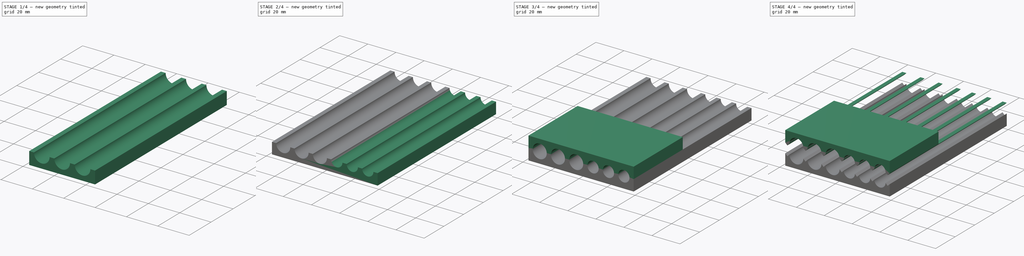
[diagram: build sequence overview — one tinted view per stage of 4, left to right]
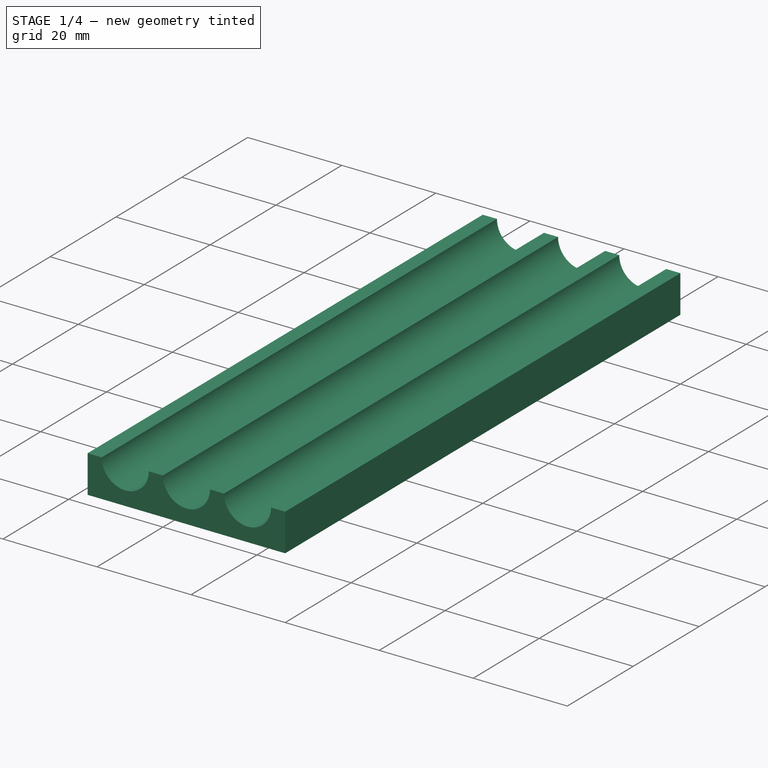
[diagram: stage 1 of 4 — iso view after this stage's code; geometry added in this stage tinted green]
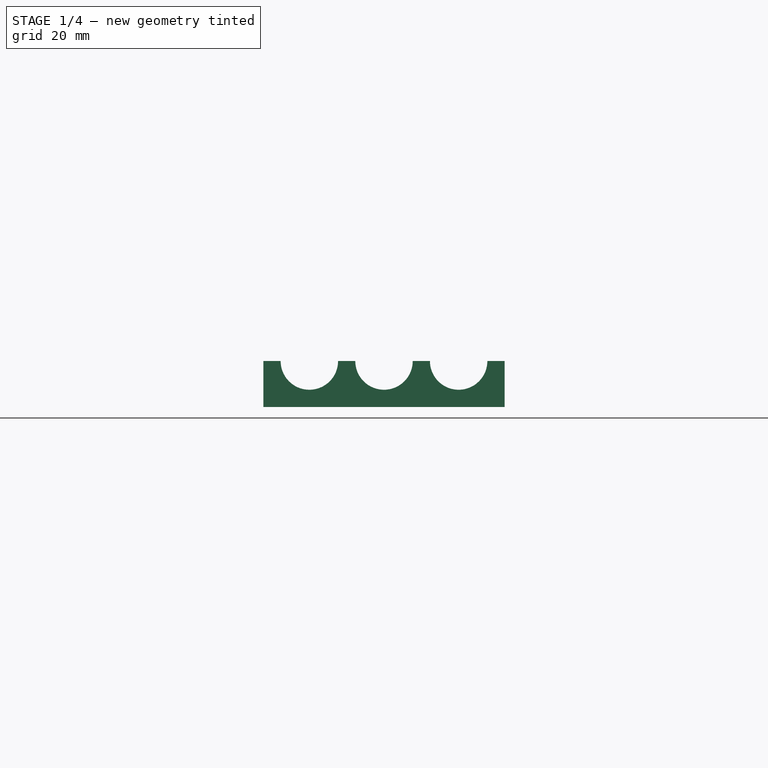
[diagram: stage 1 of 4 — front view after this stage's code; geometry added in this stage tinted green]
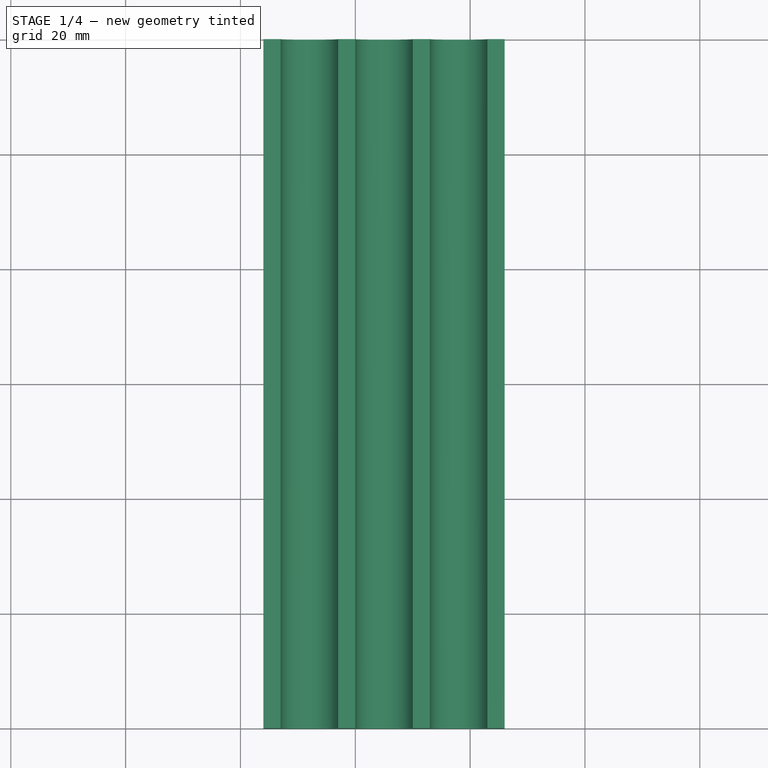
[diagram: stage 1 of 4 — top view after this stage's code; geometry added in this stage tinted green]
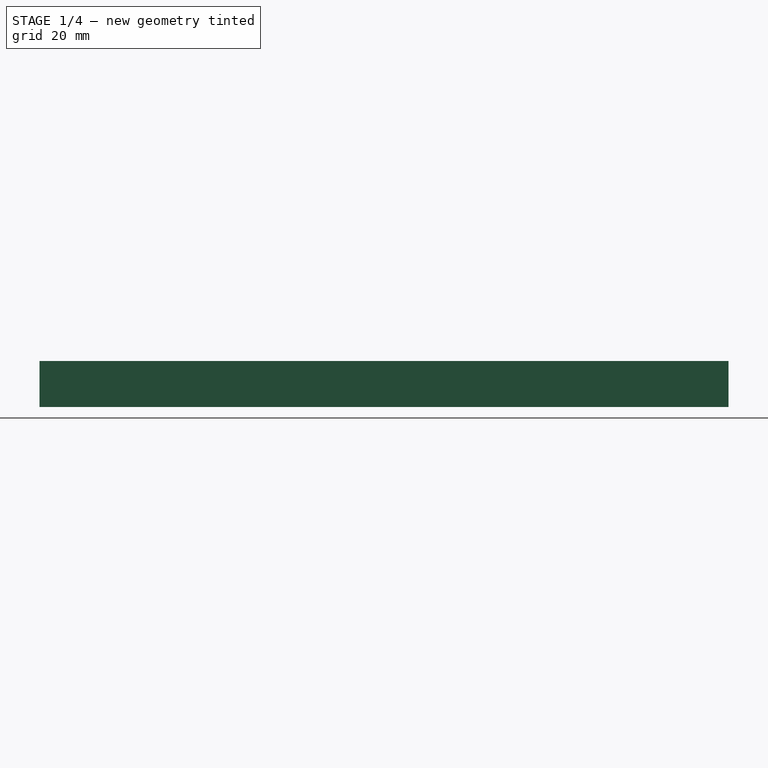
[diagram: stage 1 of 4 — right view after this stage's code; geometry added in this stage tinted green]
FCSTD DOCUMENT  (FreeCAD 1.1R40043 (Git))
Label: doska
License: All rights reserved
LicenseURL: https://en.wikipedia.org/wiki/All_rights_reserved
objects: Sketcher::SketchObject×4, PartDesign::Pad×3, Part::FeaturePython×3, App::Point×2, PartDesign::LinearPattern×2, PartDesign::Body×2, PartDesign::SubShapeBinder×1, Part::Extrusion×1, Part::MultiFuse×1, App::DocumentObjectGroup×1
note: 29 computed .brp shape members not serialized (recipe doc carries the construction recipe); baked Part::Feature solids carry a one-line shape summary decoded from their .brp

FEATURE [App::Point] Origin001  label="Начало координат"
  Role = Origin
FEATURE [Sketcher::SketchObject] Sketch
  ArcFitTolerance = 1e-06
  AttachmentSupport = -> [XZ_Plane]
  ExternalTypes = [0]
  FullyConstrained = true
  MakeInternals = false
  MapMode = 5
  Placement = pos=(0,0,0) rot=(1,0,0;1.5708rad)
  sketch-geometry (7):
    g0: LineSegment StartX=-13 StartY=8 StartZ=0 EndX=-16 EndY=8 EndZ=0
    g1: LineSegment StartX=-16 StartY=8 StartZ=0 EndX=-16 EndY=0 EndZ=0
    g2: LineSegment StartX=-16 StartY=0 StartZ=0 EndX=0 EndY=0 EndZ=0
    g3: LineSegment StartX=0 StartY=0 StartZ=0 EndX=0 EndY=8 EndZ=0
    g4: LineSegment StartX=0 StartY=8 StartZ=0 EndX=-3 EndY=8 EndZ=0
    g5: ArcOfCircle CenterX=-8 CenterY=8 CenterZ=0 NormalX=0 NormalY=0 NormalZ=1 AngleXU=0 Radius=5 StartAngle=3.14159 EndAngle=6.28319
    g6: GeomPoint X=-8 Y=3 Z=0
  constraints (21):
    c: Coincident(g0,g1)
    c: Coincident(g1,g2)
    c: Horizontal(g2)
    c: Coincident(g2,g3)
    c: Coincident(g3,g4)
    c: Coincident(g5,g0)
    c: Coincident(g5,g4)
    c: Horizontal(g0)
    c: Horizontal(g4)
    c: Horizontal(g4,g0)
    c: Vertical(g3)
    c: Horizontal(g5,g4)
    c: DistanceX(g0,g0) = 3  'L1'
    c: Radius(g5) = 5
    c: Equal(g4,g0)
    c: PointOnObject(g6,g5)
    c: Vertical(g6,g5)
    c: DistanceY(g2,g6) = 3
    c: Vertical(g1)
    c: Coincident(g2,g-1)
    c: DistanceX(g2,g2) = 16  'L2'
FEATURE [PartDesign::Pad] Pad
  Direction = (0,-1,2e-16)
  Length = 120
  Length2 = 10
  Placement = pos=(0,0,0) rot=(1,0,0;1.5708rad)
  Profile = -> Sketch
  ReferenceAxis = -> Sketch [N_Axis]
  Refine = true
  Suppressed = false
  Type = 0
FEATURE [PartDesign::LinearPattern] LinearPattern
  BaseFeature = -> Pad
  Direction = -> Sketch [H_Axis]
  Length = 26
  Mode = 1
  Occurrences = 3
  Offset = 13
  Originals = -> [Pad]
  Placement = pos=(0,0,0) rot=(1,0,0;1.5708rad)
  Refine = true
  Suppressed = false
  TransformMode = 0
  expr: Offset = Sketch.Constraints.L2 - Sketch.Constraints.L1
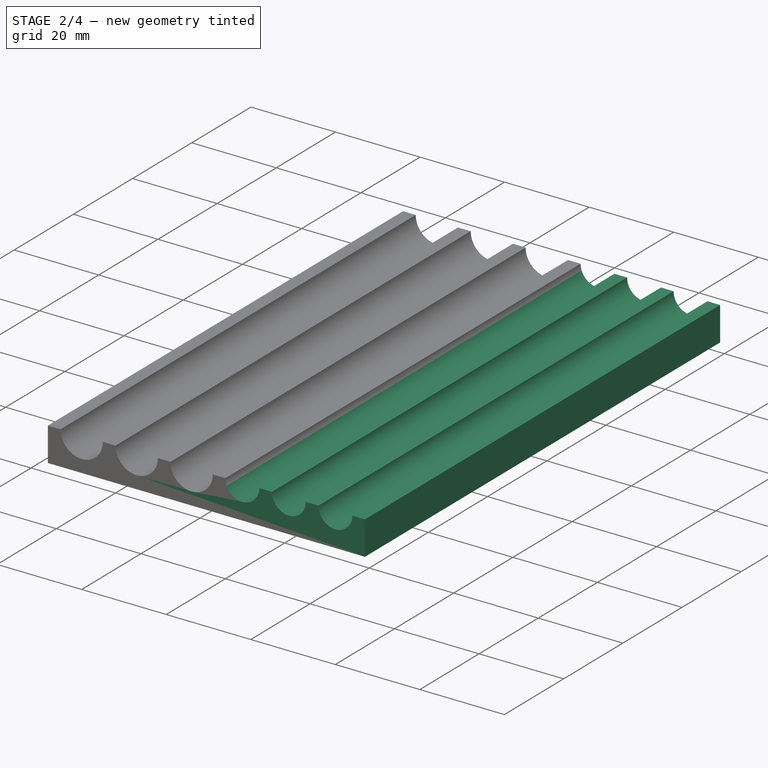
[diagram: stage 2 of 4 — iso view after this stage's code; geometry added in this stage tinted green]
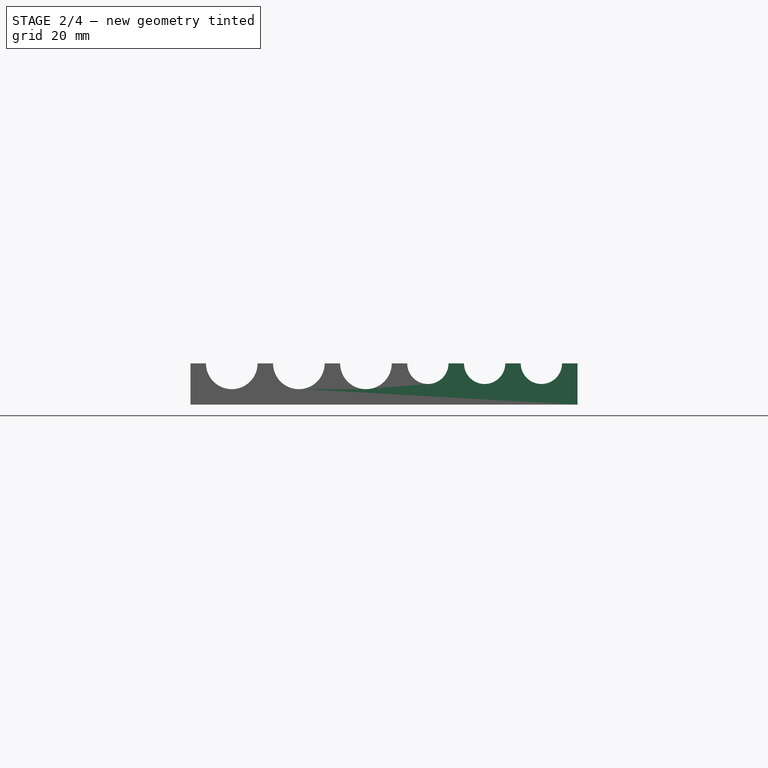
[diagram: stage 2 of 4 — front view after this stage's code; geometry added in this stage tinted green]
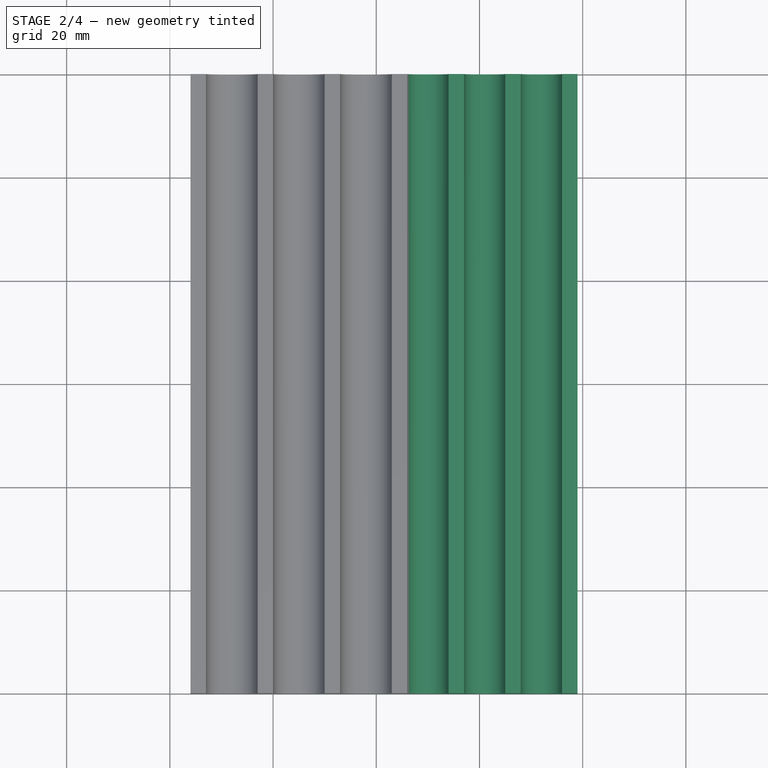
[diagram: stage 2 of 4 — top view after this stage's code; geometry added in this stage tinted green]
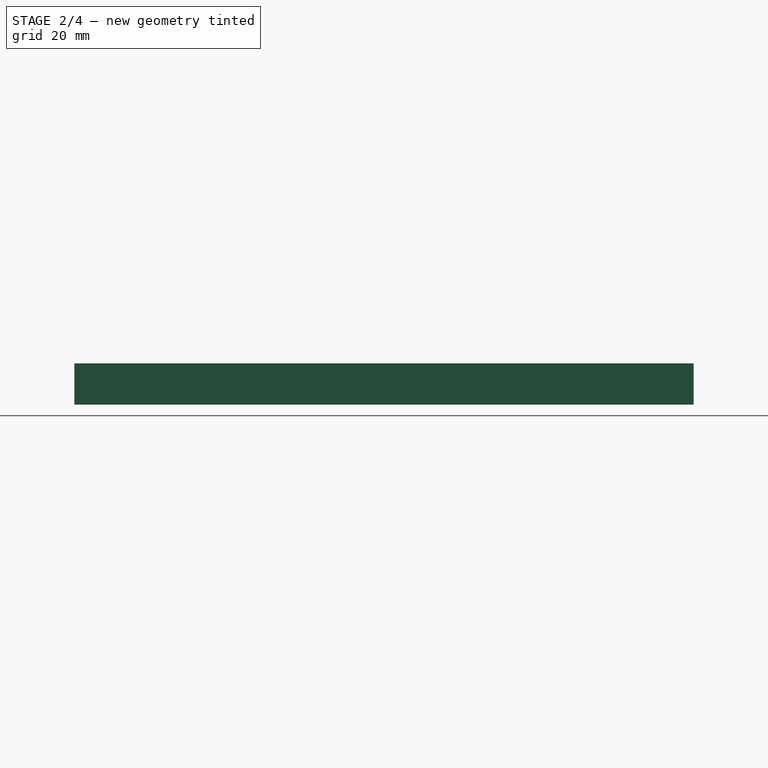
[diagram: stage 2 of 4 — right view after this stage's code; geometry added in this stage tinted green]
FEATURE [Sketcher::SketchObject] Sketch001
  ArcFitTolerance = 1e-06
  AttachmentSupport = -> [LinearPattern]
  ExternalGeometry = -> [LinearPattern]
  ExternalTypes = [0,0]
  FullyConstrained = true
  MakeInternals = false
  MapMode = 5
  Placement = pos=(0,-120,-2.66e-14) rot=(1,0,0;1.5708rad)
  sketch-geometry (6):
    g0: LineSegment StartX=23 StartY=8 StartZ=0 EndX=23 EndY=5.33e-14 EndZ=0
    g1: LineSegment StartX=23 StartY=5.33e-14 StartZ=0 EndX=37 EndY=5.33e-14 EndZ=0
    g2: LineSegment StartX=26 StartY=8 StartZ=0 EndX=23 EndY=8 EndZ=0
    g3: ArcOfCircle CenterX=30 CenterY=8 CenterZ=0 NormalX=0 NormalY=0 NormalZ=1 AngleXU=0 Radius=4 StartAngle=3.14159 EndAngle=6.28319
    g4: LineSegment StartX=37 StartY=5.33e-14 StartZ=0 EndX=37 EndY=8 EndZ=0
    g5: LineSegment StartX=37 StartY=8 StartZ=0 EndX=34 EndY=8 EndZ=0
  constraints (18):
    c: Coincident(g0,g1)
    c: Coincident(g2,g0)
    c: Vertical(g0)
    c: Horizontal(g1)
    c: Coincident(g0,g-3)
    c: PointOnObject(g-4,g1)
    c: Coincident(g3,g2)
    c: Coincident(g4,g1)
    c: Coincident(g5,g4)
    c: Coincident(g5,g3)
    c: Vertical(g4)
    c: Horizontal(g5)
    c: Equal(g5,g2)
    c: Horizontal(g3,g3)
    c: Horizontal(g3,g2)
    c: Coincident(g2,g-4)
    c: Radius(g3) = 4
    c: DistanceX(g1,g1) = 14  'L3'
FEATURE [PartDesign::Pad] Pad001
  BaseFeature = -> LinearPattern
  Direction = (0,-1,2e-16)
  Length = 10
  Length2 = 10
  Placement = pos=(0,0,0) rot=(1,0,0;1.5708rad)
  Profile = -> Sketch001
  ReferenceAxis = -> Sketch001 [N_Axis]
  Refine = true
  Suppressed = false
  Type = 3
  UpToFace = -> LinearPattern [Face10]
FEATURE [PartDesign::LinearPattern] LinearPattern001
  BaseFeature = -> Pad001
  Direction = -> Sketch001 [H_Axis]
  Length = 22
  Mode = 1
  Occurrences = 3
  Offset = 11
  Originals = -> [Pad001]
  Placement = pos=(0,0,0) rot=(1,0,0;1.5708rad)
  Refine = true
  Suppressed = false
  TransformMode = 0
  expr: Offset = Sketch001.Constraints.L3 - Sketch.Constraints.L1
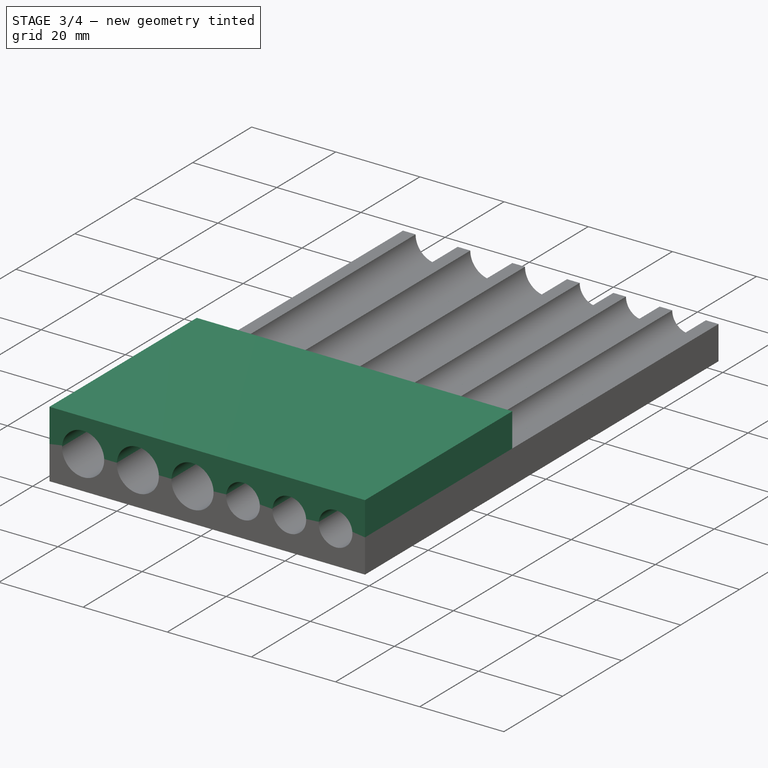
[diagram: stage 3 of 4 — iso view after this stage's code; geometry added in this stage tinted green]
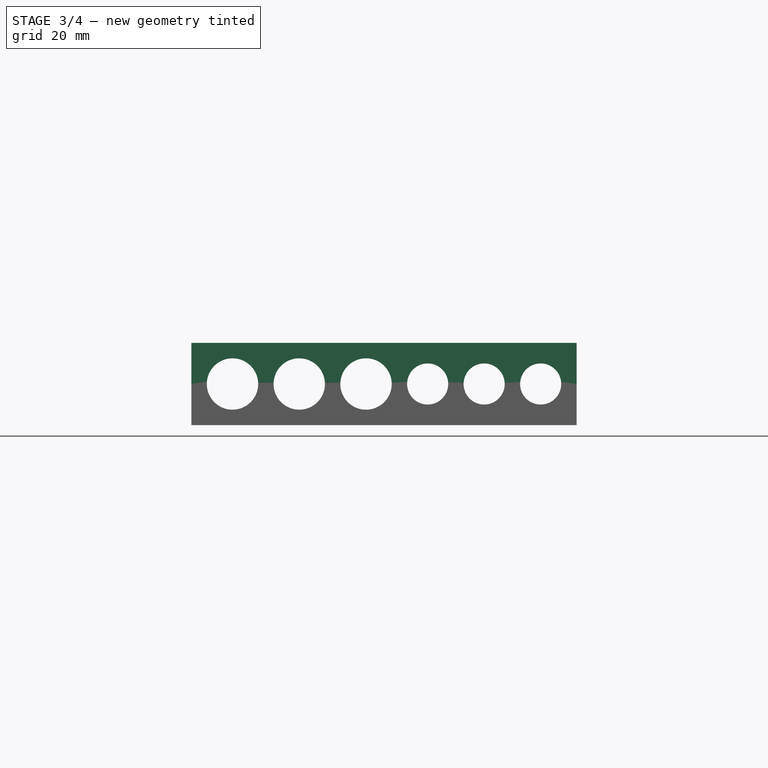
[diagram: stage 3 of 4 — front view after this stage's code; geometry added in this stage tinted green]
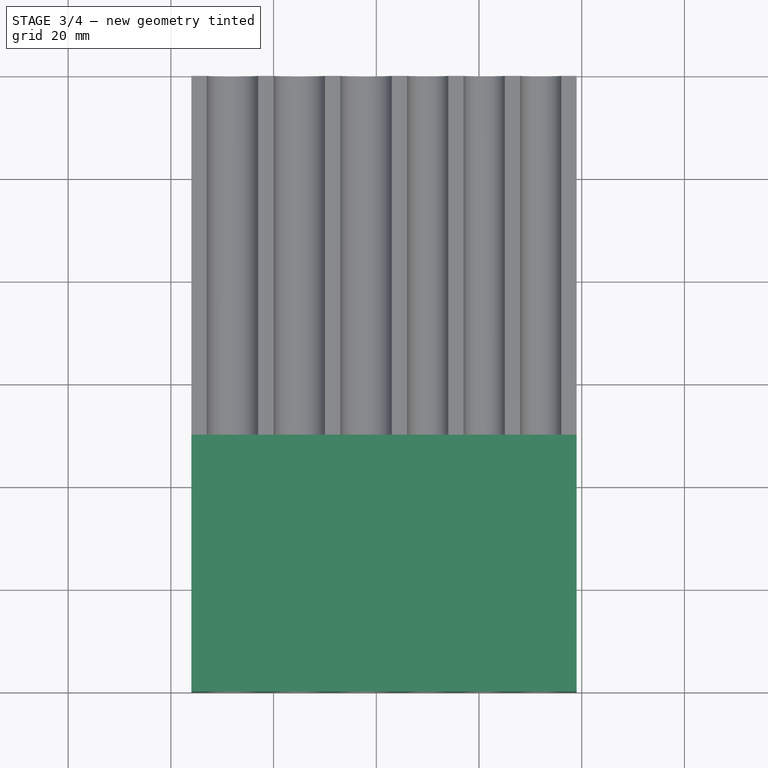
[diagram: stage 3 of 4 — top view after this stage's code; geometry added in this stage tinted green]
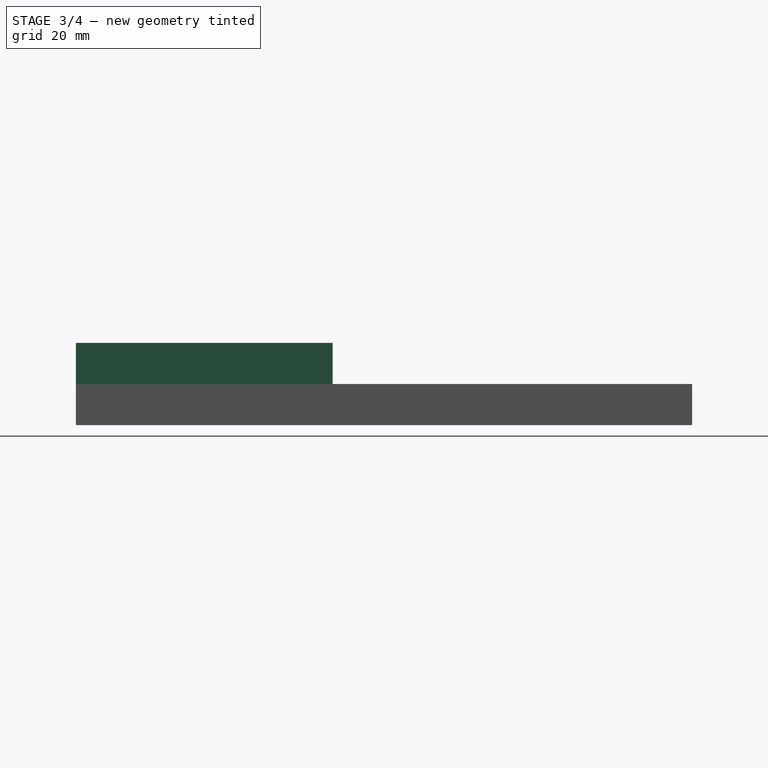
[diagram: stage 3 of 4 — right view after this stage's code; geometry added in this stage tinted green]
FEATURE [Sketcher::SketchObject] Sketch002
  ArcFitTolerance = 1e-06
  AttachmentSupport = -> [LinearPattern001]
  ExternalTypes = [0]
  FullyConstrained = true
  MakeInternals = false
  MapMode = 5
  Placement = pos=(0,-120,-6.04e-14) rot=(1,0,0;1.5708rad)
FEATURE [PartDesign::Body] Body  label="Тело"
  AllowCompound = false
  Group = -> [Sketch,Pad,LinearPattern,Sketch001,Pad001,LinearPattern001,Sketch002]
  Origin = -> Origin
  Tip = -> LinearPattern001
FEATURE [App::Point] Origin003  label="Начало координат002"
  Role = Origin
FEATURE [PartDesign::SubShapeBinder] Binder
  BindCopyOnChange = 0
  BindMode = 0
  ClaimChildren = false
  Context = -> Body001 [Binder.]
  Fuse = false
  MakeFace = true
  OffsetFill = false
  OffsetIntersection = false
  OffsetJoinType = 0
  OffsetOpenResult = false
  PartialLoad = false
  Placement = pos=(1.067e-13,-240,16) rot=(-1,0,0;3.14159rad)
  Refine = true
  Relative = true
  Support = -> [Body[LinearPattern001.Face16]]
  _Version = 2
FEATURE [PartDesign::Pad] Pad002
  Direction = (-4e-16,1,5e-16)
  Length = 50
  Length2 = 10
  Placement = pos=(1.067e-13,-240,16) rot=(-1,0,0;3.14159rad)
  Profile = -> Binder [Face1]
  Refine = true
  Suppressed = false
  Type = 0
FEATURE [PartDesign::Body] Body001  label="Тело001"
  AllowCompound = false
  Group = -> [Binder,Pad002]
  Origin = -> Origin002
  Tip = -> Pad002
FEATURE [Sketcher::SketchObject] Sketch003
  ArcFitTolerance = 1e-06
  AttachmentSupport = -> [Pad002]
  ExternalGeometry = -> [LinearPattern001]
  ExternalTypes = [0,0,0,0,0,0,0]
  FullyConstrained = true
  MakeInternals = false
  MapMode = 5
  Placement = pos=(5.34e-14,-120,16) rot=(0,0.707107,-0.707107;3.14159rad)
  sketch-geometry (34):
    g0: LineSegment StartX=-60.5 StartY=6.5 StartZ=0 EndX=-57.5 EndY=9.5 EndZ=0
    g1: LineSegment StartX=-57.5 StartY=9.5 StartZ=0 EndX=-54.5 EndY=6.5 EndZ=0
    g2: GeomPoint [constr] X=-57.5 Y=8 Z=0
    g3: GeomPoint [constr] X=-57.5 Y=6.5 Z=0
    g4: LineSegment StartX=-49.5 StartY=6.5 StartZ=0 EndX=-46.5 EndY=9.5 EndZ=0
    g5: LineSegment StartX=-46.5 StartY=9.5 StartZ=0 EndX=-43.5 EndY=6.5 EndZ=0
    g6: GeomPoint [constr] X=-46.5 Y=8 Z=0
    g7: GeomPoint [constr] X=-46.5 Y=6.5 Z=0
    g8: LineSegment [constr] StartX=-48 StartY=8 StartZ=0 EndX=-45 EndY=8 EndZ=0
    g9: LineSegment StartX=-38.5 StartY=6.5 StartZ=0 EndX=-35.5 EndY=9.5 EndZ=0
    g10: LineSegment StartX=-35.5 StartY=9.5 StartZ=0 EndX=-32.5 EndY=6.5 EndZ=0
    g11: GeomPoint [constr] X=-35.5 Y=8 Z=0
    g12: GeomPoint [constr] X=-35.5 Y=6.5 Z=0
    g13: LineSegment [constr] StartX=-37 StartY=8 StartZ=0 EndX=-34 EndY=8 EndZ=0
    g14: LineSegment StartX=-27.5 StartY=6.5 StartZ=0 EndX=-24.5 EndY=9.5 EndZ=0
    g15: LineSegment StartX=-24.5 StartY=9.5 StartZ=0 EndX=-21.5 EndY=6.5 EndZ=0
    g16: GeomPoint [constr] X=-24.5 Y=8 Z=0
    g17: GeomPoint [constr] X=-24.5 Y=6.5 Z=0
    g18: LineSegment [constr] StartX=-26 StartY=8 StartZ=0 EndX=-23 EndY=8 EndZ=0
    g19: LineSegment StartX=-14.5 StartY=6.5 StartZ=0 EndX=-11.5 EndY=9.5 EndZ=0
    g20: LineSegment StartX=-11.5 StartY=9.5 StartZ=0 EndX=-8.5 EndY=6.5 EndZ=0
    g21: GeomPoint [constr] X=-11.5 Y=8 Z=0
    g22: GeomPoint [constr] X=-11.5 Y=6.5 Z=0
    g23: LineSegment [constr] StartX=-13 StartY=8 StartZ=0 EndX=-10 EndY=8 EndZ=0
    g24: LineSegment StartX=-1.5 StartY=6.5 StartZ=0 EndX=1.5 EndY=9.5 EndZ=0
    g25: LineSegment StartX=1.5 StartY=9.5 StartZ=0 EndX=4.5 EndY=6.5 EndZ=0
    g26: GeomPoint [constr] X=1.5 Y=8 Z=0
    g27: GeomPoint [constr] X=1.5 Y=6.5 Z=0
    g28: LineSegment [constr] StartX=5.34e-14 StartY=8 StartZ=0 EndX=3 EndY=8 EndZ=0
    g29: LineSegment StartX=11.5 StartY=6.5 StartZ=0 EndX=14.5 EndY=9.5 EndZ=0
    g30: LineSegment StartX=14.5 StartY=9.5 StartZ=0 EndX=17.5 EndY=6.5 EndZ=0
    g31: GeomPoint [constr] X=14.5 Y=8 Z=0
    g32: GeomPoint [constr] X=14.5 Y=6.5 Z=0
    g33: LineSegment [constr] StartX=13 StartY=8 StartZ=0 EndX=16 EndY=8 EndZ=0
  constraints (68):
    c: Coincident(g0,g1)
    c: Angle(g0,g1) = 1.5708
    c: Symmetric(g-3,g-3,g2)
    c: Symmetric(g0,g1,g3)
    c: Symmetric(g0,g3,g2)
    c: Horizontal(g3,g1)
    c: Coincident(g4,g5)
    c: Coincident(g9,g10)
    c: Coincident(g14,g15)
    c: Coincident(g19,g20)
    c: Coincident(g24,g25)
    c: Coincident(g29,g30)
    c: Angle(g4,g5) = 1.5708
    c: Angle(g9,g10) = 1.5708
    c: Angle(g14,g15) = 1.5708
    c: Angle(g19,g20) = 1.5708
    c: Angle(g24,g25) = 1.5708
    c: Angle(g29,g30) = 1.5708
    c: Symmetric(g8,g8,g6)
    c: Symmetric(g13,g13,g11)
    c: Symmetric(g18,g18,g16)
    c: Symmetric(g23,g23,g21)
    c: Symmetric(g28,g28,g26)
    c: Symmetric(g33,g33,g31)
    c: Symmetric(g4,g5,g7)
    c: Symmetric(g9,g10,g12)
    c: Symmetric(g14,g15,g17)
    c: Symmetric(g19,g20,g22)
    c: Symmetric(g24,g25,g27)
    c: Symmetric(g29,g30,g32)
    c: Symmetric(g4,g7,g6)
    c: Symmetric(g9,g12,g11)
    c: Symmetric(g14,g17,g16)
    c: Symmetric(g19,g22,g21)
    c: Symmetric(g24,g27,g26)
    c: Symmetric(g29,g32,g31)
    c: Horizontal(g7,g5)
    c: Horizontal(g12,g10)
    c: Horizontal(g17,g15)
    c: Horizontal(g22,g20)
    c: Horizontal(g27,g25)
    c: Horizontal(g32,g30)
    c: Coincident(g8,g-4)
    c: Coincident(g8,g-4)
    c: Coincident(g13,g-5)
    c: Coincident(g13,g-5)
    c: Coincident(g-6,g18)
    c: Coincident(g-6,g18)
    c: Coincident(g23,g-7)
    c: Coincident(g23,g-7)
    c: Coincident(g28,g-8)
    c: Coincident(g28,g-8)
    c: Coincident(g33,g-9)
    c: Coincident(g33,g-9)
    c: Vertical(g27,g26)
    c: PointOnObject(g28,g25)
    c: PointOnObject(g23,g19)
    c: Vertical(g22,g19)
    c: PointOnObject(g18,g14)
    c: Vertical(g14,g17)
    c: PointOnObject(g13,g9)
    c: Vertical(g12,g9)
    c: PointOnObject(g8,g5)
    c: Vertical(g7,g6)
    c: PointOnObject(g-3,g1)
    c: Vertical(g3,g2)
    c: Vertical(g32,g31)
    c: PointOnObject(g33,g29)
FEATURE [Part::Extrusion] Extrude
  Base = -> Sketch003
  Dir = (0,-1,-2e-16)
  DirMode = 2
  FaceMakerClass = Part::FaceMakerBullseye
  FaceMakerMode = 3
  LengthFwd = 0
  LengthRev = 150
  Placement = pos=(0,-21,0) rot=(0,0,1;0rad)
  Solid = false
  Symmetric = false
FEATURE [Part::MultiFuse] Fusion
  Refine = true
  Shapes = -> [Body,Body001]
FEATURE [Part::FeaturePython] Slice  # WARN: FeaturePython — macro-defined, semantics opaque (R4)
  Base = -> Fusion
  Mode = 1
  Tolerance = 0
  Tools = -> [Extrude]
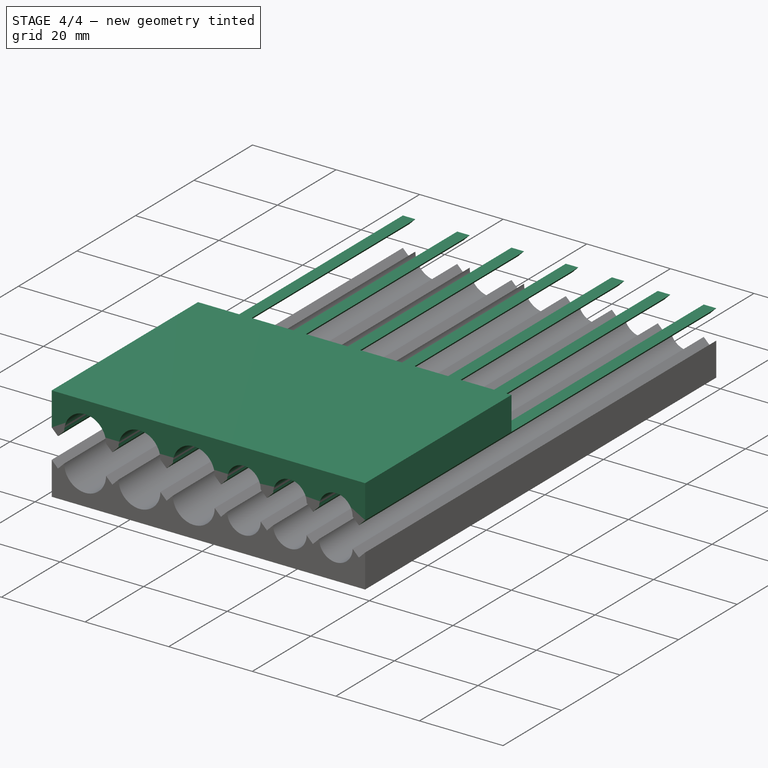
[diagram: stage 4 of 4 — iso view after this stage's code; geometry added in this stage tinted green]
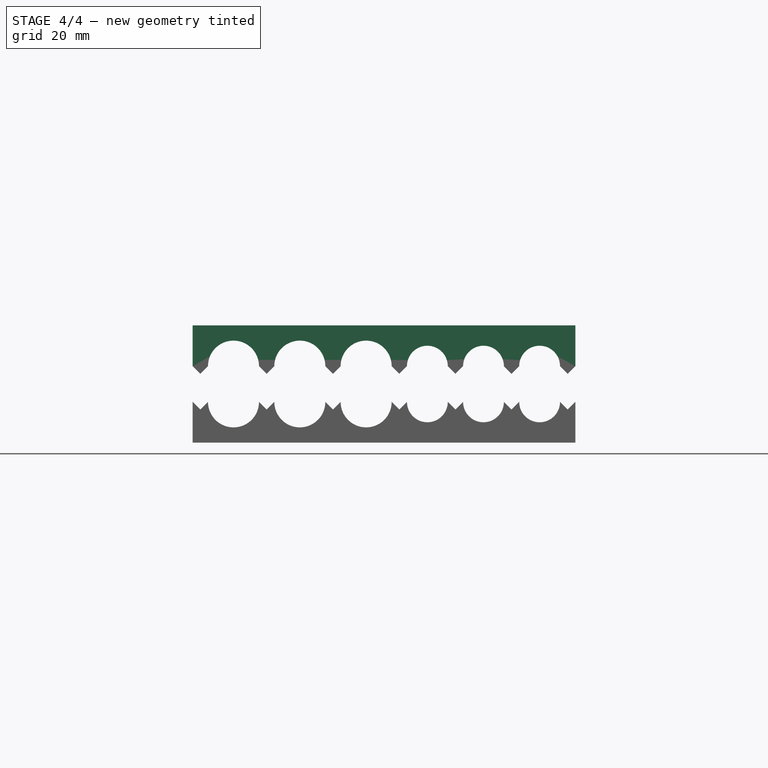
[diagram: stage 4 of 4 — front view after this stage's code; geometry added in this stage tinted green]
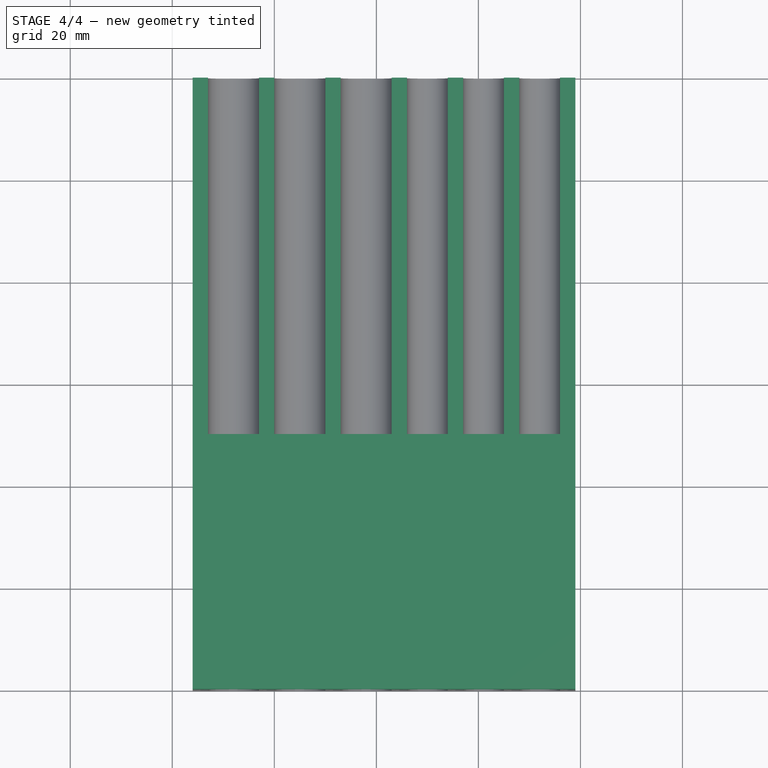
[diagram: stage 4 of 4 — top view after this stage's code; geometry added in this stage tinted green]
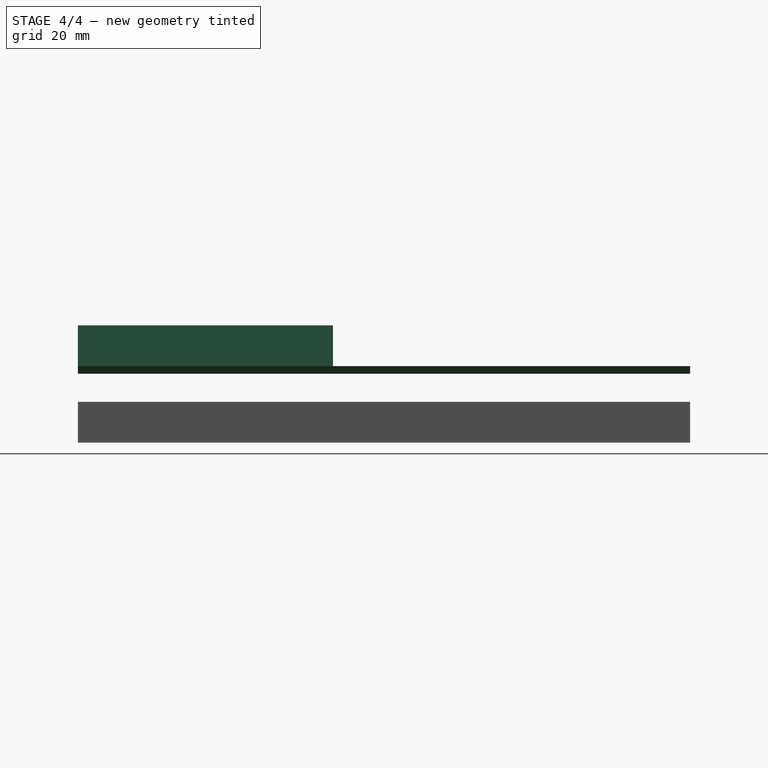
[diagram: stage 4 of 4 — right view after this stage's code; geometry added in this stage tinted green]
FEATURE [Part::FeaturePython] Slice_child0  label="Slice.0"  # WARN: FeaturePython — macro-defined, semantics opaque (R4)
  Base = -> Slice
  FilterType = 1
  Invert = false
  OverrideMaxVal = 0
  Placement = pos=(0,0,7) rot=(0,0,1;0rad)
  WindowFrom = 80
  WindowTo = 100
  items = 0
FEATURE [Part::FeaturePython] Slice_child1  label="Slice.1"  # WARN: FeaturePython — macro-defined, semantics opaque (R4)
  Base = -> Slice
  FilterType = 1
  Invert = false
  OverrideMaxVal = 0
  WindowFrom = 80
  WindowTo = 100
  items = 1
FEATURE [App::DocumentObjectGroup] GrExplode_Slice  label="Exploded Slice"
  Group = -> [Slice_child0,Slice_child1]
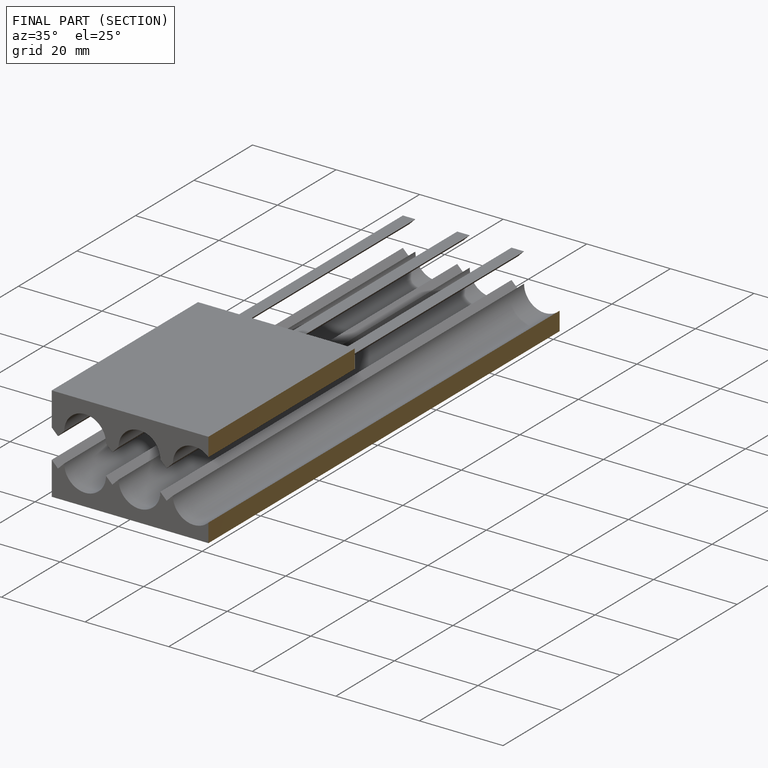
[diagram: finished part — half-section view (interior)]
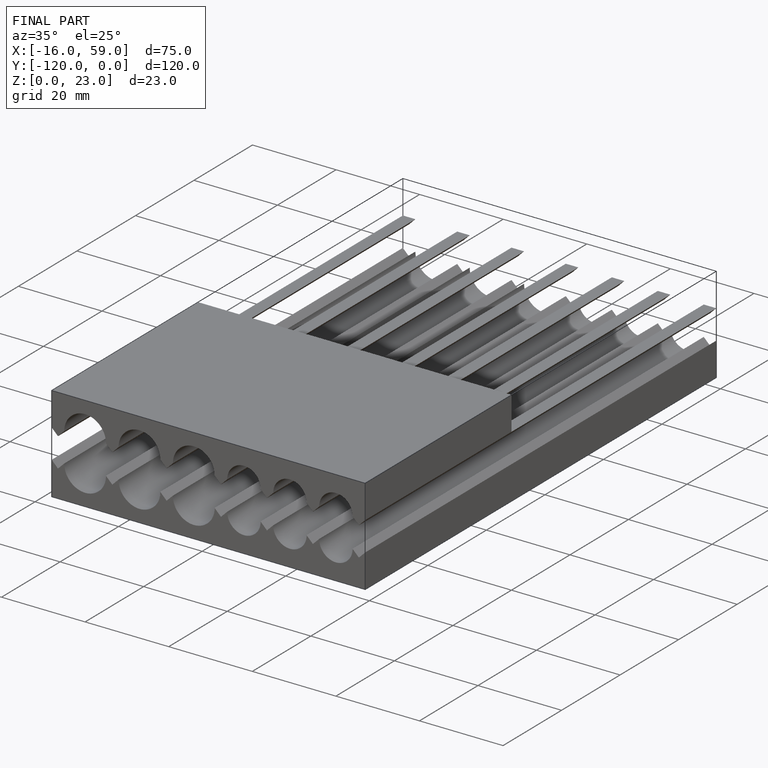
[diagram: finished part — iso view with bounding-box wireframe]
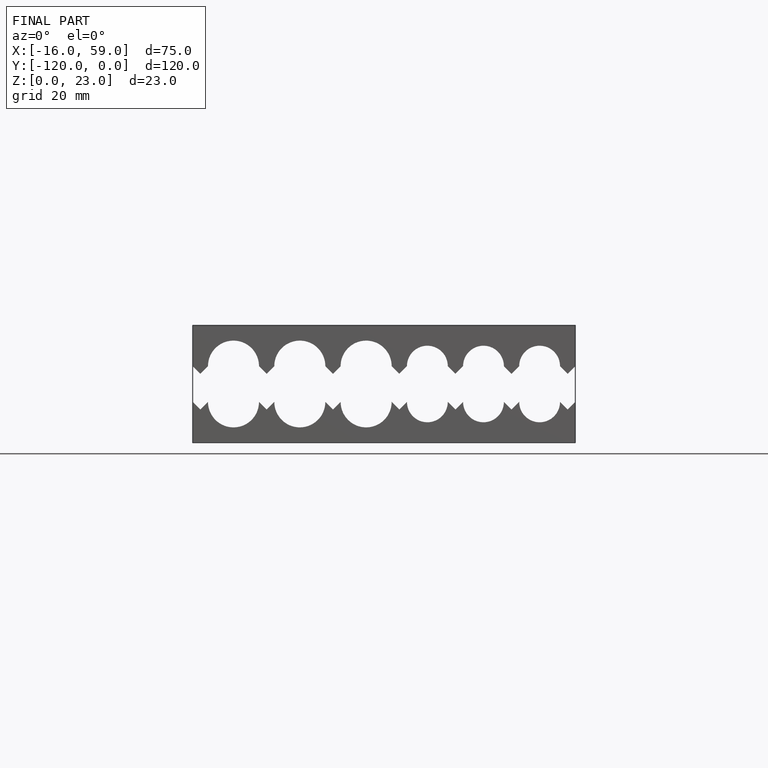
[diagram: finished part — front view with bounding-box wireframe]
